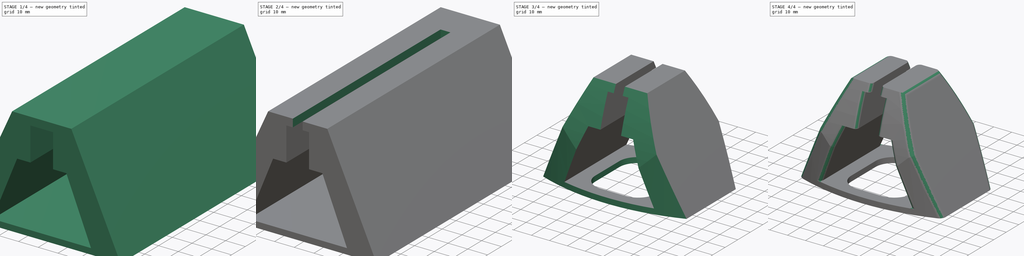
[diagram: build sequence overview — one tinted view per stage of 4, left to right]
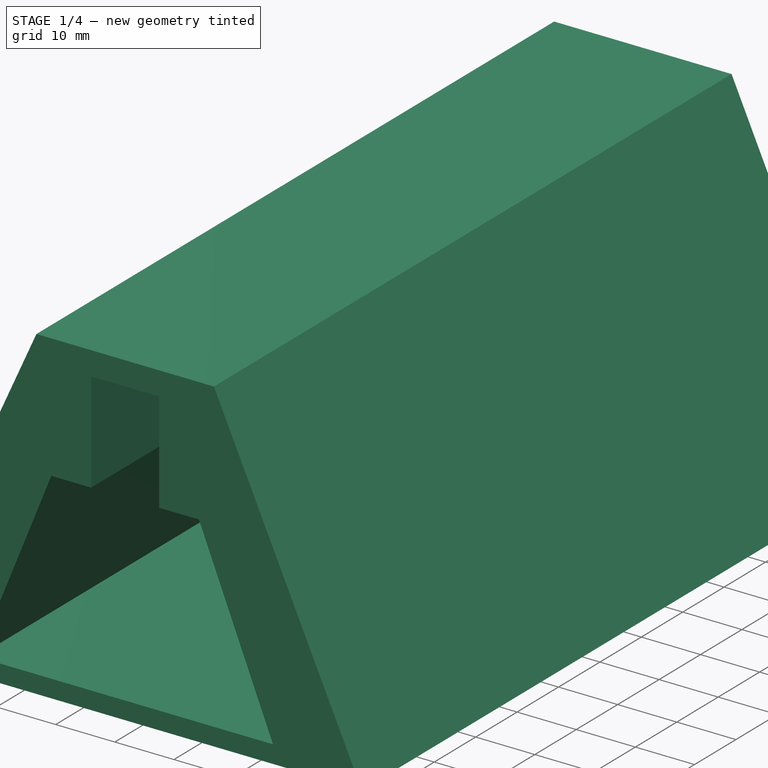
[diagram: stage 1 of 4 — iso view after this stage's code; geometry added in this stage tinted green]
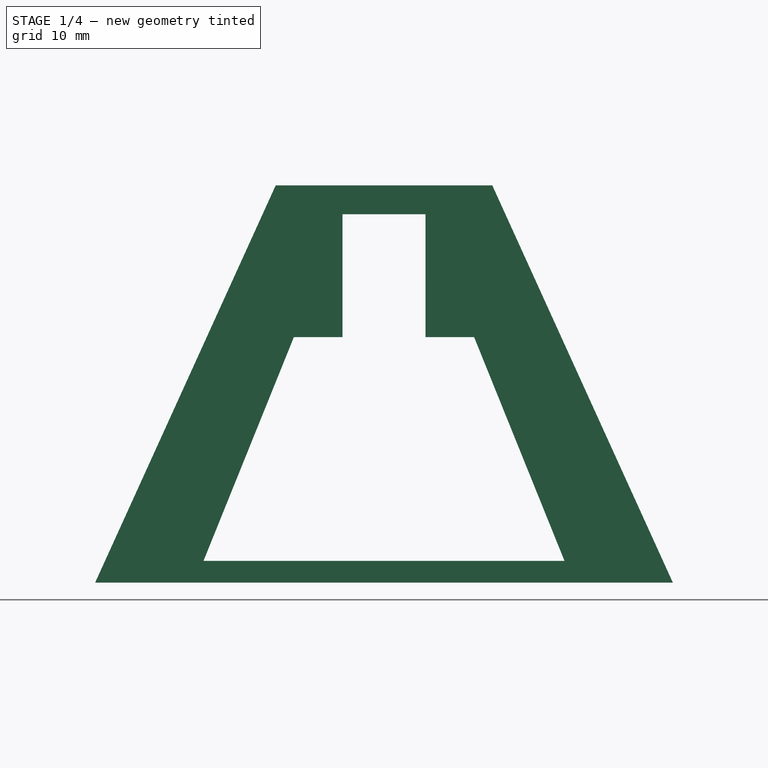
[diagram: stage 1 of 4 — front view after this stage's code; geometry added in this stage tinted green]
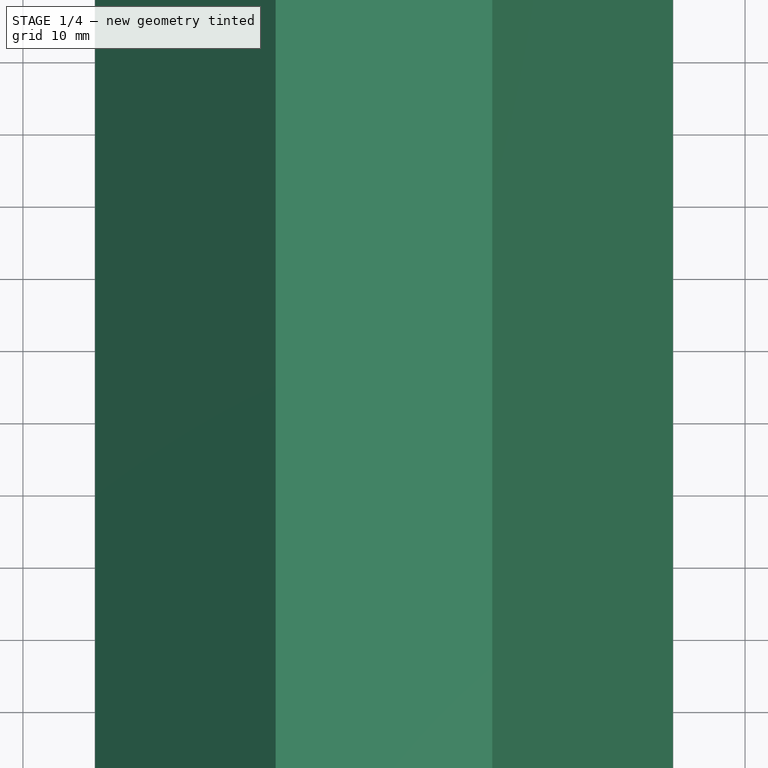
[diagram: stage 1 of 4 — top view after this stage's code; geometry added in this stage tinted green]
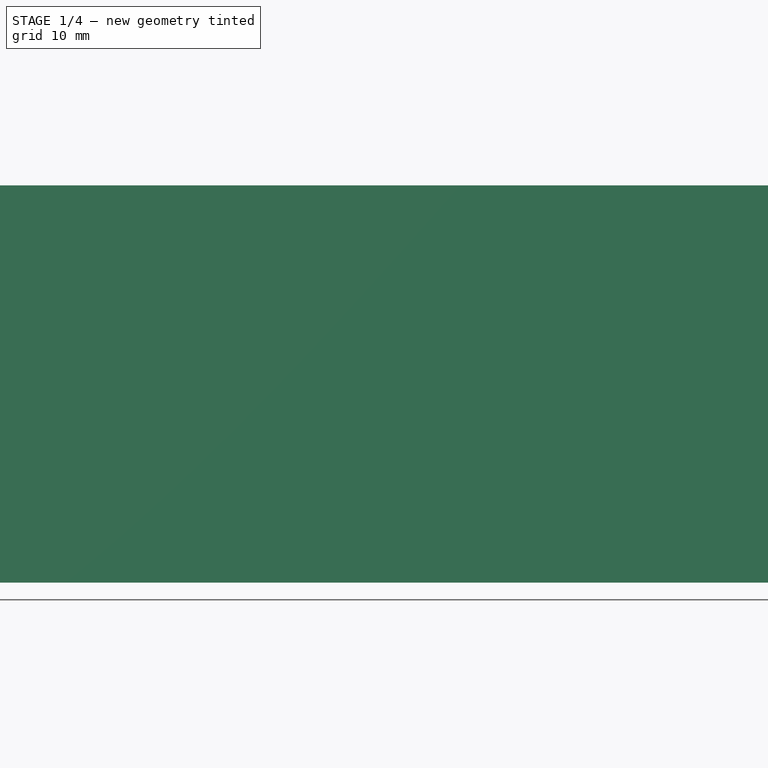
[diagram: stage 1 of 4 — right view after this stage's code; geometry added in this stage tinted green]
FCSTD DOCUMENT  (FreeCAD 0.19R)
Label: ChargerHolder
License: All rights reserved
LicenseURL: http://en.wikipedia.org/wiki/All_rights_reserved
objects: Sketcher::SketchObject×9, PartDesign::Pocket×8, PartDesign::Fillet×4, PartDesign::Pad×1, PartDesign::Body×1
note: 36 computed .brp shape members not serialized (recipe doc carries the construction recipe); baked Part::Feature solids carry a one-line shape summary decoded from their .brp

FEATURE [Sketcher::SketchObject] Sketch001
  FullyConstrained = true
  MapMode = 5
  Placement = pos=(0,-62.5,0) rot=(1,0,0;1.5708rad)
  sketch-geometry (4):
    g0: LineSegment StartX=-40 StartY=0 StartZ=0 EndX=-15 EndY=55 EndZ=0
    g1: LineSegment StartX=-15 StartY=55 StartZ=0 EndX=15 EndY=55 EndZ=0
    g2: LineSegment StartX=15 StartY=55 StartZ=0 EndX=40 EndY=0 EndZ=0
    g3: LineSegment StartX=40 StartY=0 StartZ=0 EndX=-40 EndY=0 EndZ=0
  constraints (10):
    c: PointOnObject(g0,g-1)
    c: Coincident(g0,g1)
    c: Coincident(g1,g2)
    c: Coincident(g2,g3)
    c: Coincident(g3,g0)
    c: Symmetric(g2,g0,g-2)
    c: Distance(g3) = 80
    c: Symmetric(g1,g0,g-2)
    c: Distance(g1) = 30
    c: DistanceY(g1) = 55
FEATURE [PartDesign::Pad] Pad
  Direction = (1,1,1)
  Length = 125
  Length2 = 100
  Placement = pos=(0,-62.5,0) rot=(1,0,0;1.5708rad)
  Profile = -> Sketch001
  Type = 0
FEATURE [Sketcher::SketchObject] Sketch
  FullyConstrained = false
  MapMode = 5
  Placement = pos=(0,-187.5,3.25e-14) rot=(1,0,0;1.5708rad)
  Support = -> [Pad]
  sketch-geometry (4):
    g0: LineSegment StartX=-12.4784 StartY=34 StartZ=0 EndX=12.4784 EndY=34 EndZ=0
    g1: LineSegment StartX=12.4784 StartY=34 StartZ=0 EndX=25 EndY=3 EndZ=0
    g2: LineSegment StartX=25 StartY=3 StartZ=0 EndX=-25 EndY=3 EndZ=0
    g3: LineSegment StartX=-25 StartY=3 StartZ=0 EndX=-12.4784 EndY=34 EndZ=0
  constraints (9):
    c: Coincident(g0,g1)
    c: Coincident(g1,g2)
    c: Coincident(g2,g3)
    c: Coincident(g3,g0)
    c: Symmetric(g1,g2,g-2)
    c: Symmetric(g0,g0,g-2)
    c: DistanceY(g1) = 3
    c: Distance(g2) = 50
    c: DistanceY(g1,g0) = 31
FEATURE [PartDesign::Pocket] Pocket
  BaseFeature = -> Pad
  Length = 5
  Length2 = 100
  Placement = pos=(0,-62.5,0) rot=(1,0,0;1.5708rad)
  Profile = -> Sketch
  Type = 1
FEATURE [Sketcher::SketchObject] Sketch002
  FullyConstrained = false
  MapMode = 5
  Placement = pos=(0,-187.5,4.64e-14) rot=(1,0,0;1.5708rad)
  Support = -> [Pocket]
  sketch-geometry (4):
    g0: LineSegment StartX=-5.75 StartY=51 StartZ=0 EndX=5.75 EndY=51 EndZ=0
    g1: LineSegment StartX=5.75 StartY=51 StartZ=0 EndX=5.75 EndY=26.4213 EndZ=0
    g2: LineSegment StartX=5.75 StartY=26.4213 StartZ=0 EndX=-5.75 EndY=26.4213 EndZ=0
    g3: LineSegment StartX=-5.75 StartY=26.4213 StartZ=0 EndX=-5.75 EndY=51 EndZ=0
  constraints (10):
    c: Coincident(g0,g1)
    c: Coincident(g1,g2)
    c: Coincident(g2,g3)
    c: Coincident(g3,g0)
    c: Horizontal(g0)
    c: Vertical(g1)
    c: Vertical(g3)
    c: Symmetric(g1,g2,g-2)
    c: DistanceY(g0) = 51
    c: Distance(g2) = 11.5
FEATURE [PartDesign::Pocket] Pocket001
  BaseFeature = -> Pocket
  Length = 5
  Length2 = 100
  Placement = pos=(0,-62.5,0) rot=(1,0,0;1.5708rad)
  Profile = -> Sketch002
  Type = 1
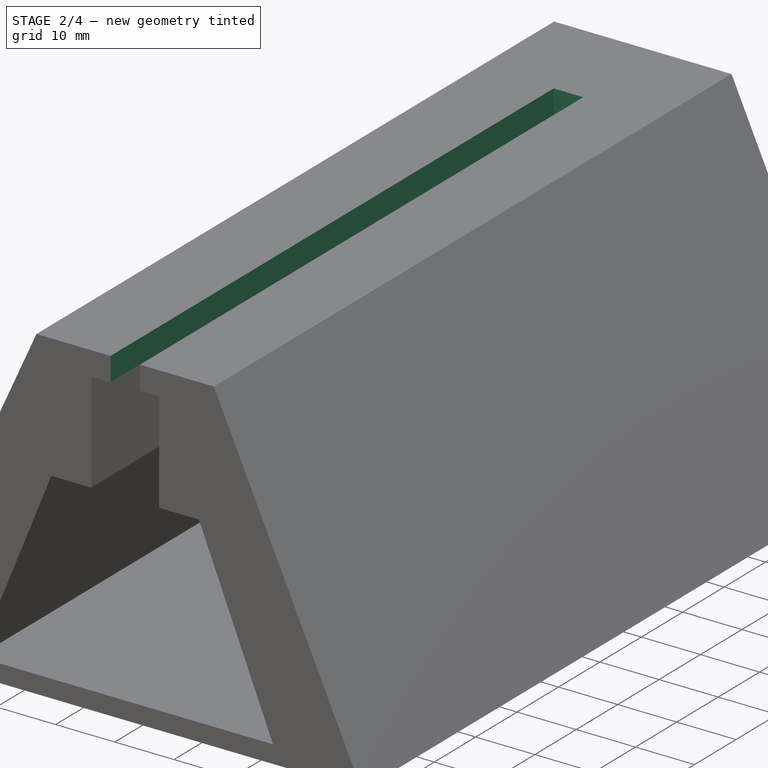
[diagram: stage 2 of 4 — iso view after this stage's code; geometry added in this stage tinted green]
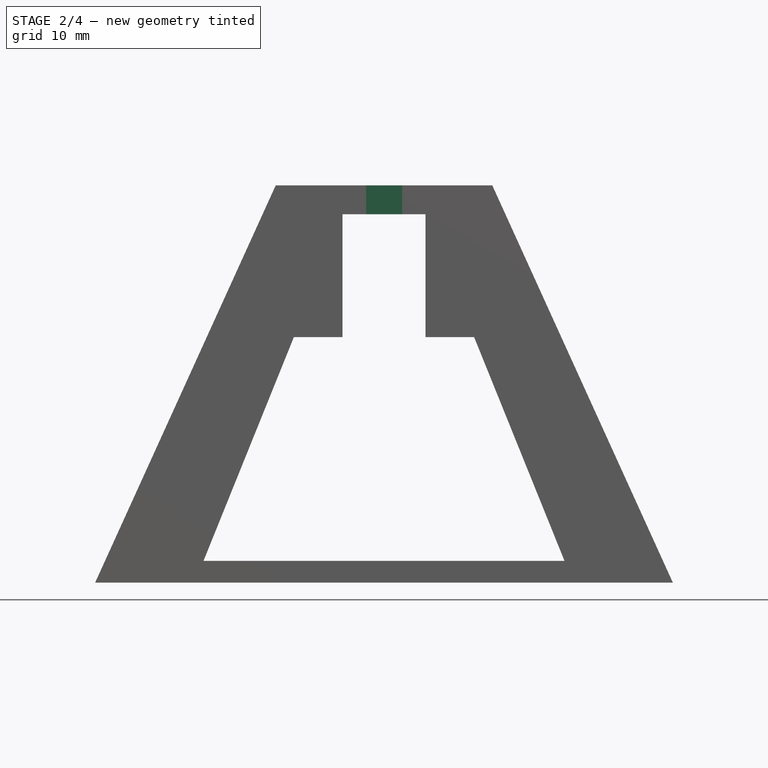
[diagram: stage 2 of 4 — front view after this stage's code; geometry added in this stage tinted green]
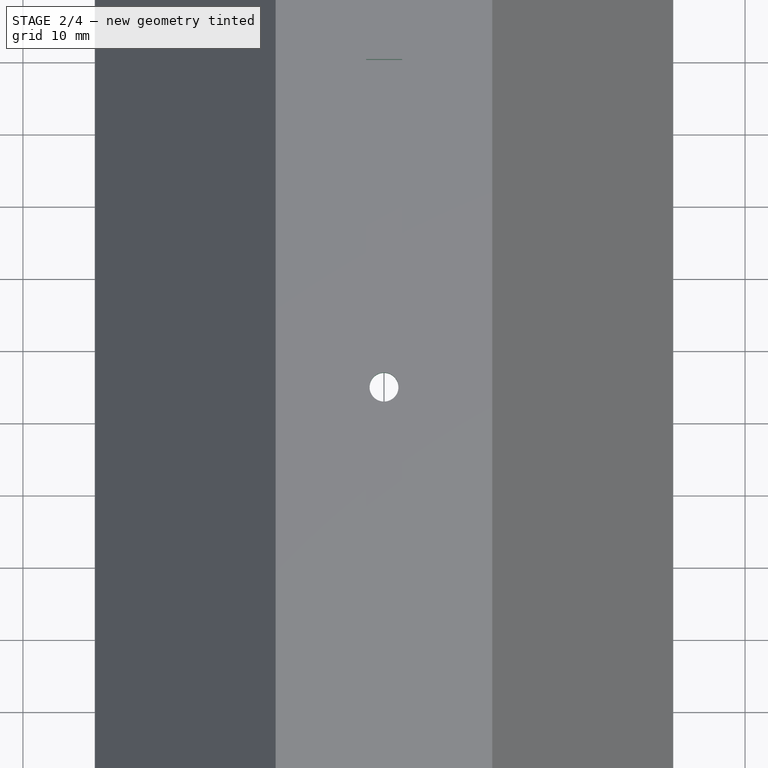
[diagram: stage 2 of 4 — top view after this stage's code; geometry added in this stage tinted green]
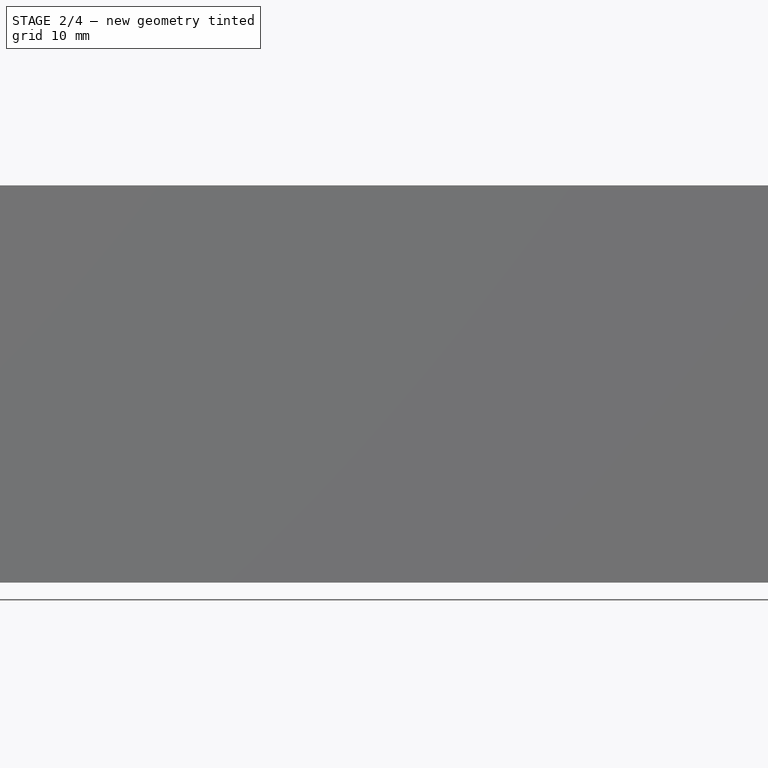
[diagram: stage 2 of 4 — right view after this stage's code; geometry added in this stage tinted green]
FEATURE [Sketcher::SketchObject] Sketch003
  FullyConstrained = false
  MapMode = 5
  Placement = pos=(0,-187.5,6.03e-14) rot=(1,0,0;1.5708rad)
  Support = -> [Pocket001]
  sketch-geometry (4):
    g0: LineSegment StartX=-2.48159 StartY=76.2642 StartZ=0 EndX=2.51841 EndY=76.2642 EndZ=0
    g1: LineSegment StartX=2.51841 StartY=76.2642 StartZ=0 EndX=2.51841 EndY=44.212 EndZ=0
    g2: LineSegment StartX=2.51841 StartY=44.212 StartZ=0 EndX=-2.48159 EndY=44.212 EndZ=0
    g3: LineSegment StartX=-2.48159 StartY=44.212 StartZ=0 EndX=-2.48159 EndY=76.2642 EndZ=0
  constraints (9):
    c: Coincident(g0,g1)
    c: Coincident(g1,g2)
    c: Coincident(g2,g3)
    c: Coincident(g3,g0)
    c: Horizontal(g0)
    c: Horizontal(g2)
    c: Vertical(g1)
    c: Vertical(g3)
    c: Distance(g0) = 5
FEATURE [PartDesign::Pocket] Pocket002
  BaseFeature = -> Pocket001
  Length = 107
  Length2 = 100
  Placement = pos=(0,-62.5,0) rot=(1,0,0;1.5708rad)
  Profile = -> Sketch003
  Type = 0
FEATURE [Sketcher::SketchObject] Sketch004
  FullyConstrained = true
  MapMode = 5
  Placement = pos=(0,-62.5,0) rot=(1,0,0;3.14159rad)
  Support = -> [Pocket002]
  sketch-geometry (1):
    g0: Circle CenterX=0 CenterY=62.5 CenterZ=0 NormalX=0 NormalY=0 NormalZ=1 AngleXU=0 Radius=2
  constraints (3):
    c: Radius(g0) = 2
    c: PointOnObject(g0,g-2)
    c: DistanceY(g0) = 62.5
FEATURE [PartDesign::Pocket] Pocket003
  BaseFeature = -> Pocket002
  Length = 5
  Length2 = 100
  Placement = pos=(0,-62.5,0) rot=(1,0,0;1.5708rad)
  Profile = -> Sketch004
  Type = 0
FEATURE [Sketcher::SketchObject] Sketch005
  ExternalGeometry = -> [Pocket003]
  FullyConstrained = false
  MapMode = 5
  Placement = pos=(0,-62.5,3) rot=(0,0,1;3.14159rad)
  Support = -> [Pocket003]
  sketch-geometry (1):
    g0: Circle CenterX=0 CenterY=62.5 CenterZ=0 NormalX=0 NormalY=0 NormalZ=1 AngleXU=0 Radius=0.961437
  constraints (1):
    c: Coincident(g0,g-3)
FEATURE [PartDesign::Pocket] Pocket004
  BaseFeature = -> Pocket003
  Length = 5
  Length2 = 100
  Placement = pos=(0,-62.5,0) rot=(1,0,0;1.5708rad)
  Profile = -> Sketch005
  Reversed = true
  Type = 1
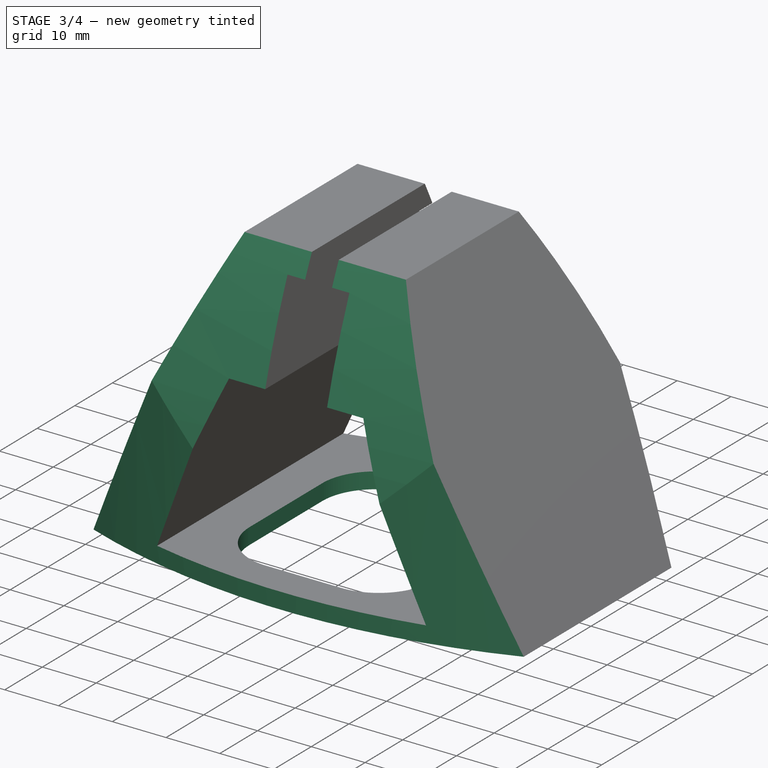
[diagram: stage 3 of 4 — iso view after this stage's code; geometry added in this stage tinted green]
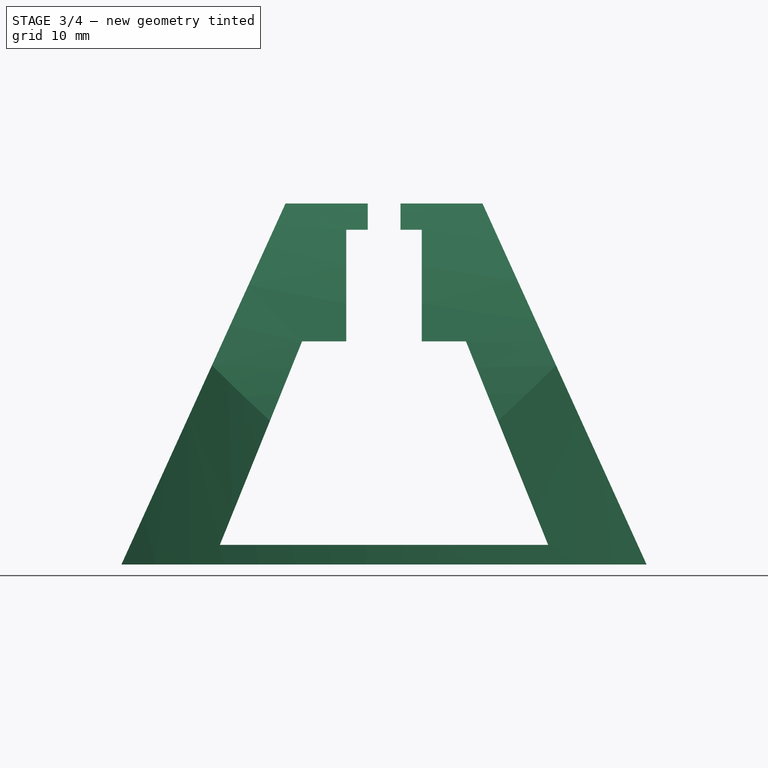
[diagram: stage 3 of 4 — front view after this stage's code; geometry added in this stage tinted green]
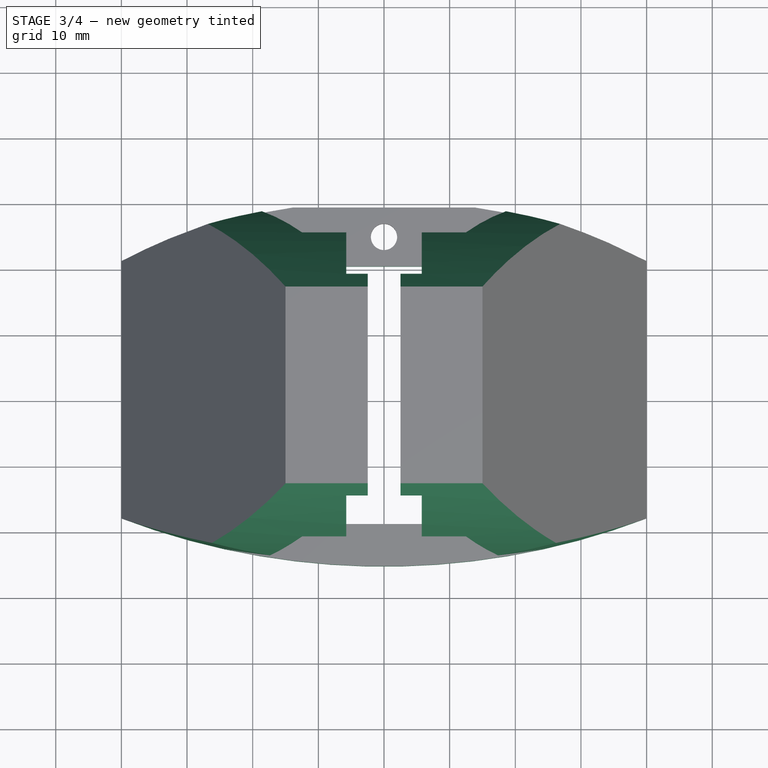
[diagram: stage 3 of 4 — top view after this stage's code; geometry added in this stage tinted green]
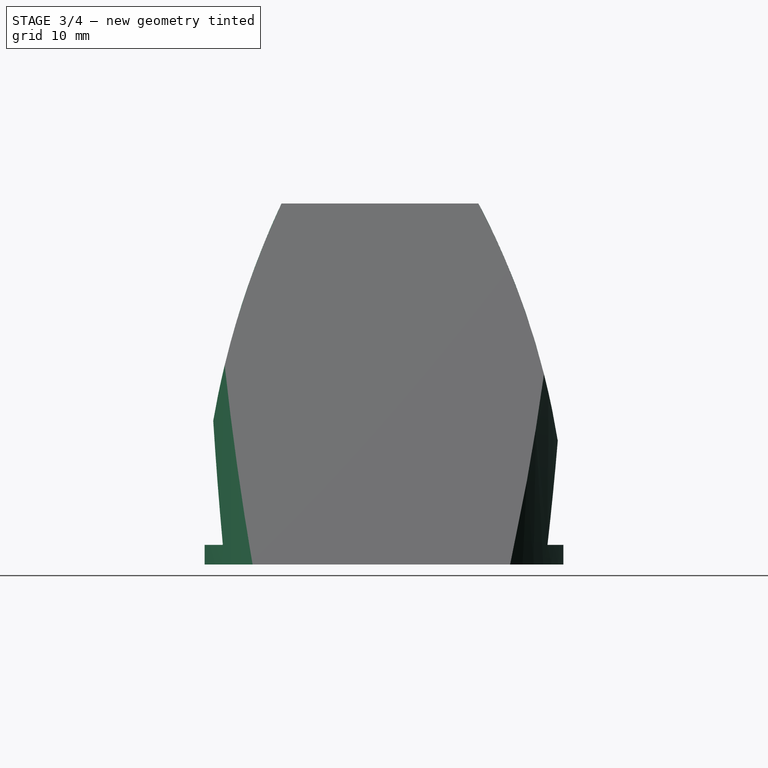
[diagram: stage 3 of 4 — right view after this stage's code; geometry added in this stage tinted green]
FEATURE [Sketcher::SketchObject] Sketch006
  ExternalGeometry = -> [Pocket004]
  FullyConstrained = false
  MapMode = 5
  Placement = pos=(0,-62.5,0) rot=(1,0,0;3.14159rad)
  Support = -> [Pocket004]
  sketch-geometry (8):
    g0: LineSegment StartX=16.6703 StartY=66.9879 StartZ=0 EndX=-17.3297 EndY=66.9879 EndZ=0
    g1: LineSegment StartX=-17.3297 StartY=66.9879 StartZ=0 EndX=-17.3297 EndY=106.241 EndZ=0
    g2: LineSegment StartX=-17.3297 StartY=106.241 StartZ=0 EndX=16.6703 EndY=106.241 EndZ=0
    g3: LineSegment StartX=16.6703 StartY=106.241 StartZ=0 EndX=16.6703 EndY=66.9879 EndZ=0
    g4: LineSegment StartX=17.3297 StartY=58.0121 StartZ=0 EndX=-16.6703 EndY=58.0121 EndZ=0
    g5: LineSegment StartX=-16.6703 StartY=58.0121 StartZ=0 EndX=-16.6703 EndY=18.7589 EndZ=0
    g6: LineSegment StartX=-16.6703 StartY=18.7589 StartZ=0 EndX=17.3297 EndY=18.7589 EndZ=0
    g7: LineSegment StartX=17.3297 StartY=18.7589 StartZ=0 EndX=17.3297 EndY=58.0121 EndZ=0
  constraints (21):
    c: Coincident(g0,g1)
    c: Vertical(g1)
    c: Coincident(g1,g2)
    c: Horizontal(g2)
    c: Coincident(g2,g3)
    c: Coincident(g3,g0)
    c: Coincident(g6,g7)
    c: Coincident(g7,g4)
    c: Equal(g6,g2)
    c: Equal(g3,g7)
    c: Symmetric(g4,g0,g-3)
    c: Parallel(g4,g0)
    c: Horizontal(g4)
    c: Distance(g4,g0) = 9
    c: Equal(g4,g0)
    c: Equal(g0,g6)
    c: Horizontal(g6)
    c: Coincident(g4,g5)
    c: Coincident(g6,g5)
    c: Parallel(g1,g5)
    c: Distance(g2) = 34
FEATURE [PartDesign::Pocket] Pocket005
  BaseFeature = -> Pocket004
  Length = 5
  Length2 = 100
  Placement = pos=(0,-62.5,0) rot=(1,0,0;1.5708rad)
  Profile = -> Sketch006
  Type = 0
FEATURE [Sketcher::SketchObject] Sketch007
  FullyConstrained = false
  MapMode = 5
  Placement = pos=(0,-62.5,0) rot=(1,0,0;3.14159rad)
  Support = -> [Pocket005]
  sketch-geometry (9):
    g0: ArcOfCircle CenterX=0 CenterY=0 CenterZ=0 NormalX=0 NormalY=0 NormalZ=1 AngleXU=0 Radius=112.693 StartAngle=1.0869 EndAngle=2.15082
    g1: ArcOfCircle CenterX=0 CenterY=148.881 CenterZ=0 NormalX=0 NormalY=0 NormalZ=1 AngleXU=0 Radius=91.912 StartAngle=4.07286 EndAngle=5.44527
    g2: LineSegment StartX=61.4907 StartY=80.5679 StartZ=0 EndX=69.9449 EndY=88.1778 EndZ=0
    g3: LineSegment StartX=69.9449 StartY=88.1778 StartZ=0 EndX=76.1919 EndY=-41.5147 EndZ=0
    g4: LineSegment StartX=76.1919 StartY=-41.5147 StartZ=0 EndX=-83.7755 EndY=-41.5147 EndZ=0
    g5: LineSegment StartX=-83.7755 StartY=-41.5147 StartZ=0 EndX=-54.8549 EndY=75.1333 EndZ=0
    g6: LineSegment StartX=-61.7605 StartY=94.2617 StartZ=0 EndX=-83.7755 EndY=165.11 EndZ=0
    g7: LineSegment StartX=-83.7755 StartY=165.11 StartZ=0 EndX=98.796 EndY=148.592 EndZ=0
    g8: LineSegment StartX=98.796 StartY=148.592 StartZ=0 EndX=52.4278 EndY=99.7544 EndZ=0
  constraints (12):
    c: Coincident(g0,g-1)
    c: PointOnObject(g1,g-2)
    c: Tangent(g1,g2) = -1.5708
    c: Coincident(g2,g3)
    c: Coincident(g3,g4)
    c: Horizontal(g4)
    c: Coincident(g4,g5)
    c: Coincident(g5,g1)
    c: Coincident(g0,g6)
    c: Coincident(g6,g7)
    c: Coincident(g7,g8)
    c: Coincident(g8,g0)
FEATURE [PartDesign::Pocket] Pocket006
  BaseFeature = -> Pocket005
  Length = 5
  Length2 = 100
  Placement = pos=(0,-62.5,0) rot=(1,0,0;1.5708rad)
  Profile = -> Sketch007
  Type = 1
FEATURE [Sketcher::SketchObject] Sketch008
  FullyConstrained = false
  MapMode = 5
  Placement = pos=(-5.75,-62.5,0) rot=(0.707107,0,0.707107;3.14159rad)
  Support = -> [Pocket006]
  sketch-geometry (8):
    g0: ArcOfCircle CenterX=0 CenterY=-16.1876 CenterZ=0 NormalX=0 NormalY=0 NormalZ=1 AngleXU=0 Radius=129.399 StartAngle=1.05705 EndAngle=1.5708
    g1: ArcOfCircle CenterX=0 CenterY=175.304 CenterZ=0 NormalX=0 NormalY=0 NormalZ=1 AngleXU=0 Radius=117.955 StartAngle=4.71239 EndAngle=5.26357
    g2: LineSegment StartX=63.5921 StartY=96.5076 StartZ=0 EndX=75.7069 EndY=138.857 EndZ=0
    g3: LineSegment StartX=75.7069 StartY=138.857 StartZ=0 EndX=-19.636 EndY=144.363 EndZ=0
    g4: LineSegment StartX=-19.636 StartY=144.363 StartZ=0 EndX=7.1e-15 EndY=113.212 EndZ=0
    g5: LineSegment StartX=61.7721 StartY=74.817 StartZ=0 EndX=94.8335 EndY=17.4324 EndZ=0
    g6: LineSegment StartX=94.8335 StartY=17.4324 StartZ=0 EndX=-45.1381 EndY=25.8365 EndZ=0
    g7: LineSegment StartX=-45.1381 StartY=25.8365 StartZ=0 EndX=-2.13e-14 EndY=57.3488 EndZ=0
  constraints (12):
    c: PointOnObject(g0,g-2)
    c: PointOnObject(g0,g-2)
    c: PointOnObject(g1,g-2)
    c: PointOnObject(g1,g-2)
    c: Coincident(g0,g2)
    c: Coincident(g2,g3)
    c: Coincident(g3,g4)
    c: Coincident(g4,g0)
    c: Coincident(g1,g5)
    c: Coincident(g5,g6)
    c: Coincident(g6,g7)
    c: Coincident(g7,g1)
FEATURE [PartDesign::Pocket] Pocket007
  BaseFeature = -> Pocket006
  Length = 29
  Length2 = 100
  Placement = pos=(0,-62.5,0) rot=(1,0,0;1.5708rad)
  Profile = -> Sketch008
  Type = 4
FEATURE [PartDesign::Fillet] Fillet
  Base = -> Pocket007 [Edge71,Edge70,Edge69,Edge68]
  BaseFeature = -> Pocket007
  Placement = pos=(0,-62.5,0) rot=(1,0,0;1.5708rad)
  Radius = 10
  SupportTransform = false
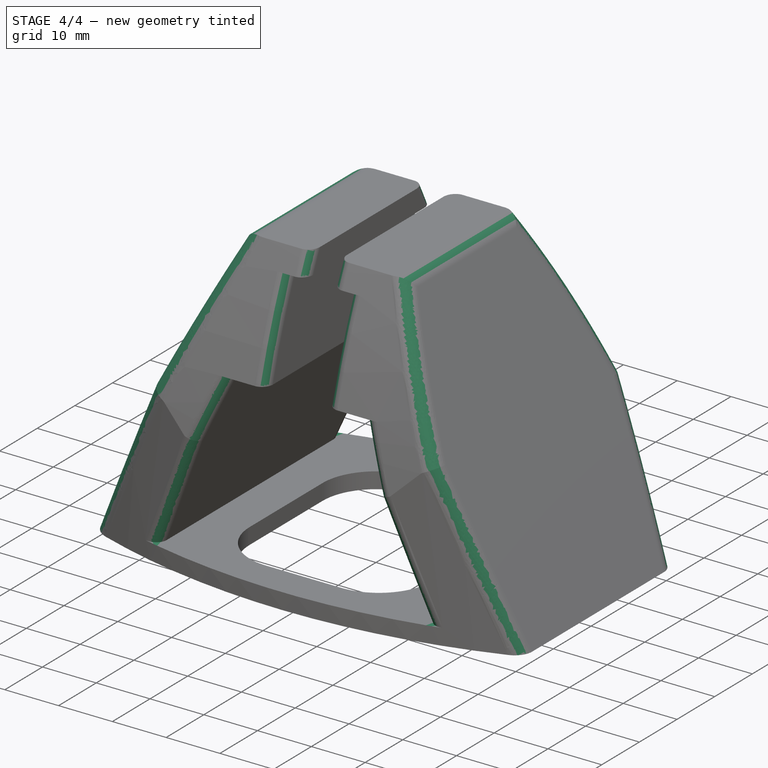
[diagram: stage 4 of 4 — iso view after this stage's code; geometry added in this stage tinted green]
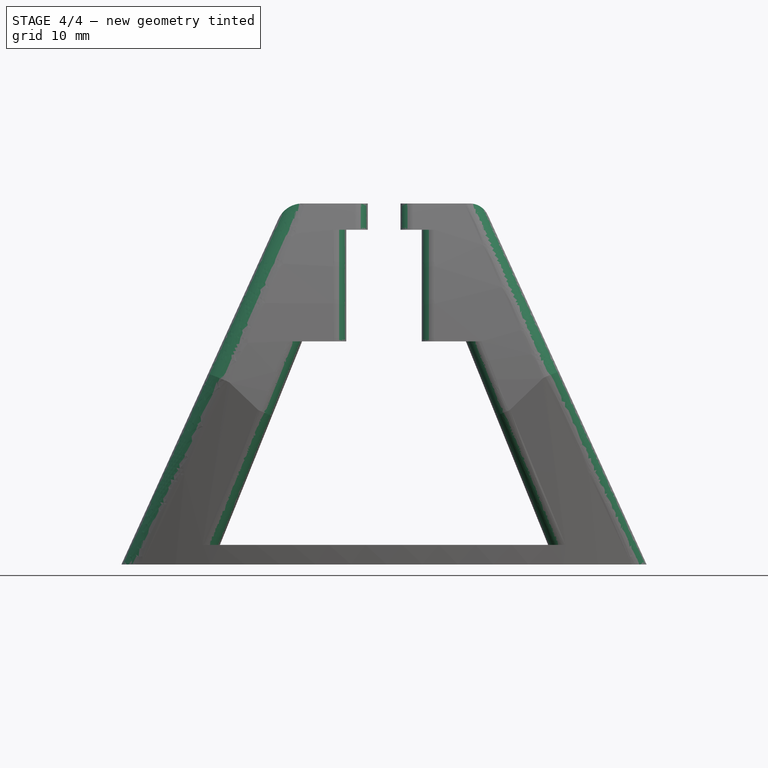
[diagram: stage 4 of 4 — front view after this stage's code; geometry added in this stage tinted green]
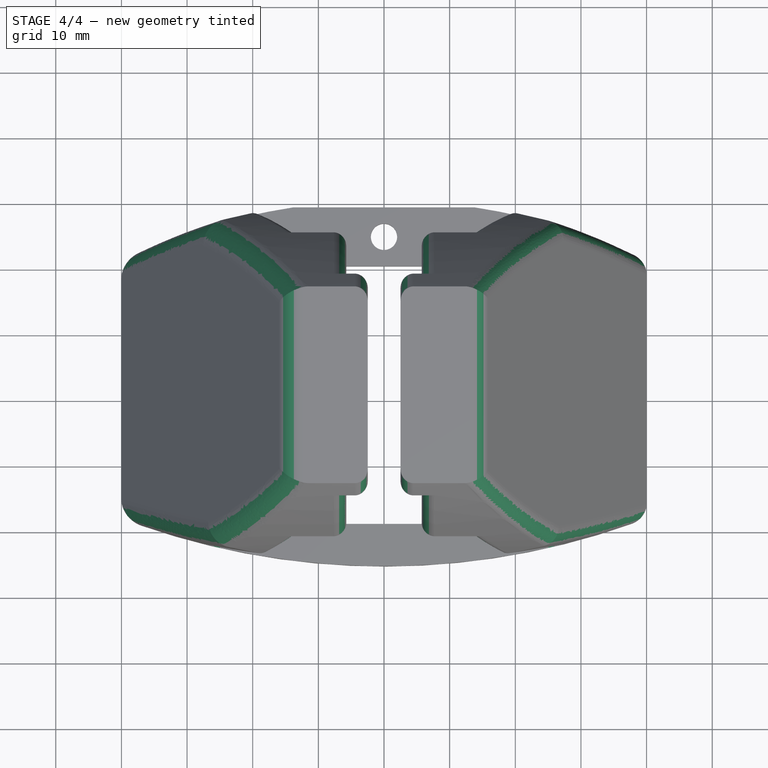
[diagram: stage 4 of 4 — top view after this stage's code; geometry added in this stage tinted green]
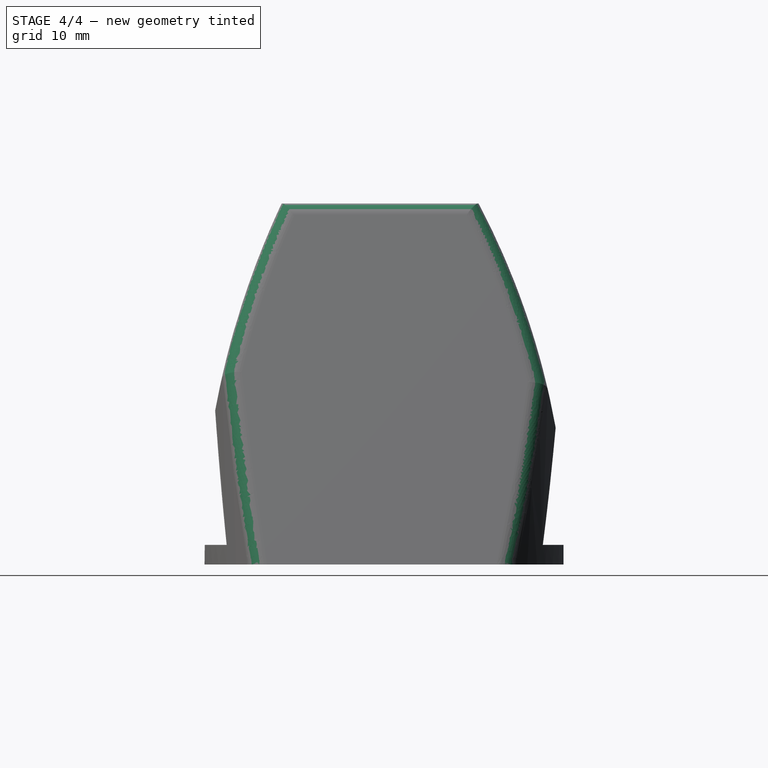
[diagram: stage 4 of 4 — right view after this stage's code; geometry added in this stage tinted green]
FEATURE [PartDesign::Fillet] Fillet001
  Base = -> Fillet [Edge52,Edge32,Edge55,Edge54,Edge53]
  BaseFeature = -> Fillet
  Placement = pos=(0,-62.5,0) rot=(1,0,0;1.5708rad)
  Radius = 3
  SupportTransform = false
FEATURE [PartDesign::Fillet] Fillet002
  Base = -> Fillet001 [Edge41,Edge40,Edge39,Edge35,Edge38]
  BaseFeature = -> Fillet001
  Placement = pos=(0,-62.5,0) rot=(1,0,0;1.5708rad)
  Radius = 4
  SupportTransform = false
FEATURE [PartDesign::Fillet] Fillet003
  Base = -> Fillet002 [Edge97,Edge82,Edge112,Edge106,Edge113,Edge108,Edge98,Edge83,Edge79,Edge94,Edge38,Edge25,Edge49,Edge101,Edge48,Edge85]
  BaseFeature = -> Fillet002
  Placement = pos=(0,-62.5,0) rot=(1,0,0;1.5708rad)
  Radius = 2
  SupportTransform = false
FEATURE [PartDesign::Body] Body
  Group = -> [Sketch001,Pad,Sketch,Pocket,Sketch002,Pocket001,Sketch003,Pocket002,Sketch004,Pocket003,Sketch005,Pocket004,Sketch006,Pocket005,Sketch007,Pocket006,Sketch008,Pocket007,Fillet,Fillet001,Fillet002,Fillet003]
  Origin = -> Origin
  Tip = -> Fillet003
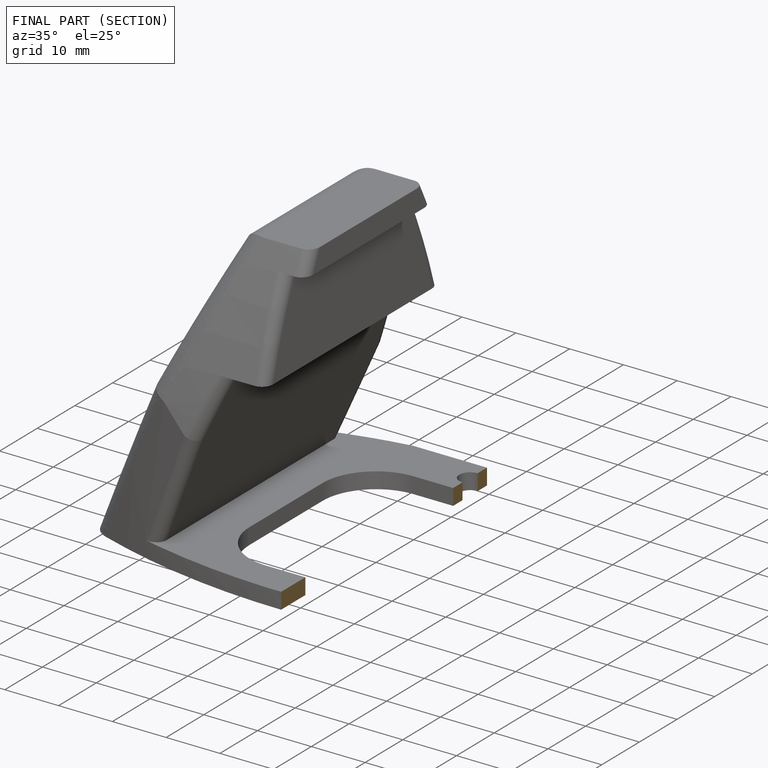
[diagram: finished part — half-section view (interior)]
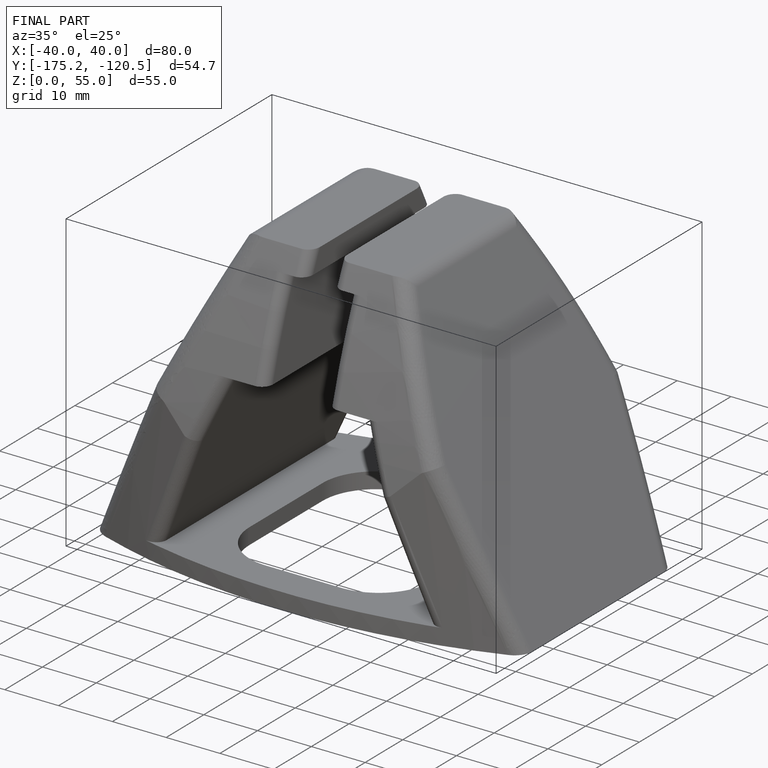
[diagram: finished part — iso view with bounding-box wireframe]
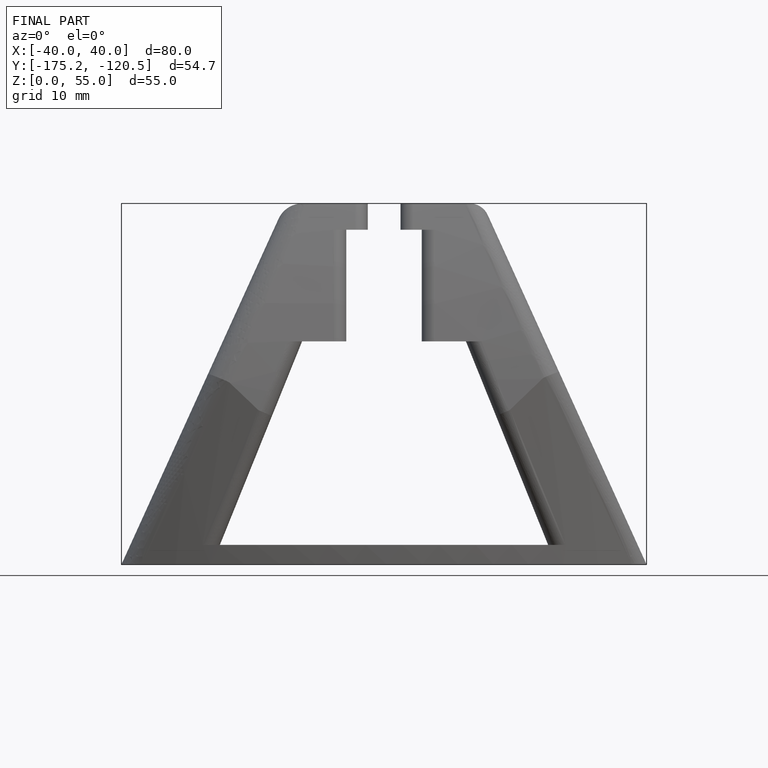
[diagram: finished part — front view with bounding-box wireframe]
